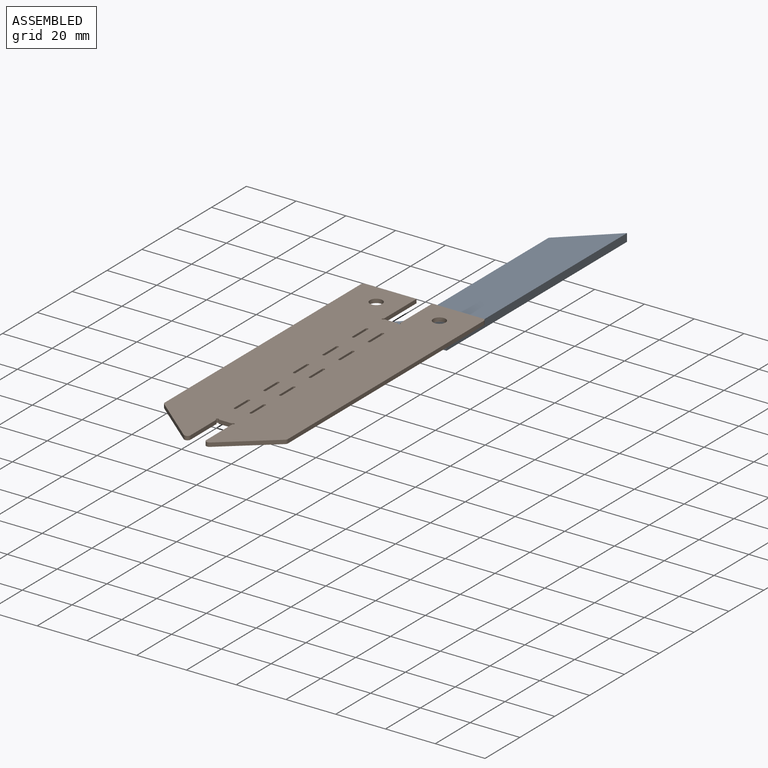
[diagram: assembled view]
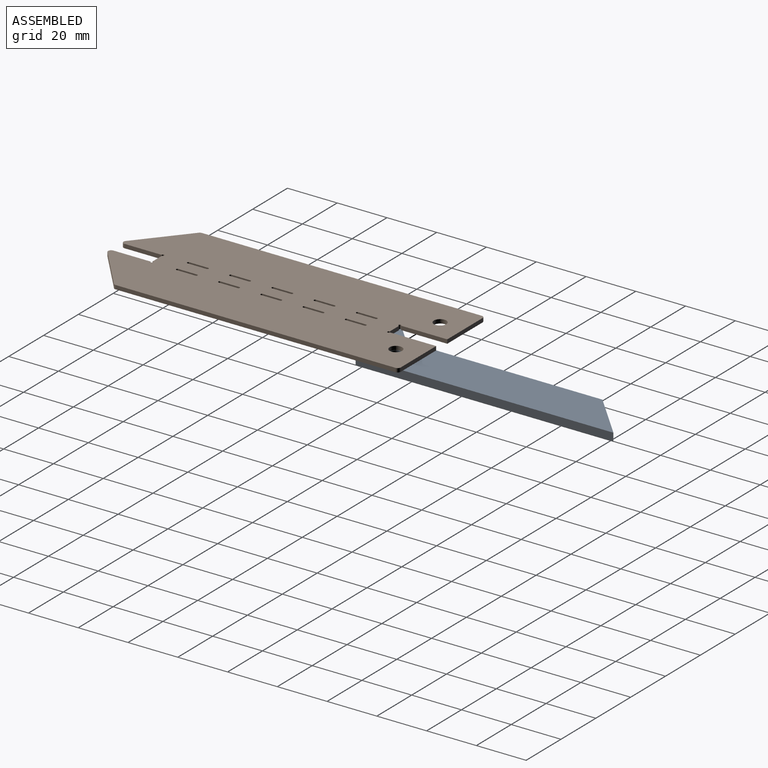
[diagram: assembled view, second angle]
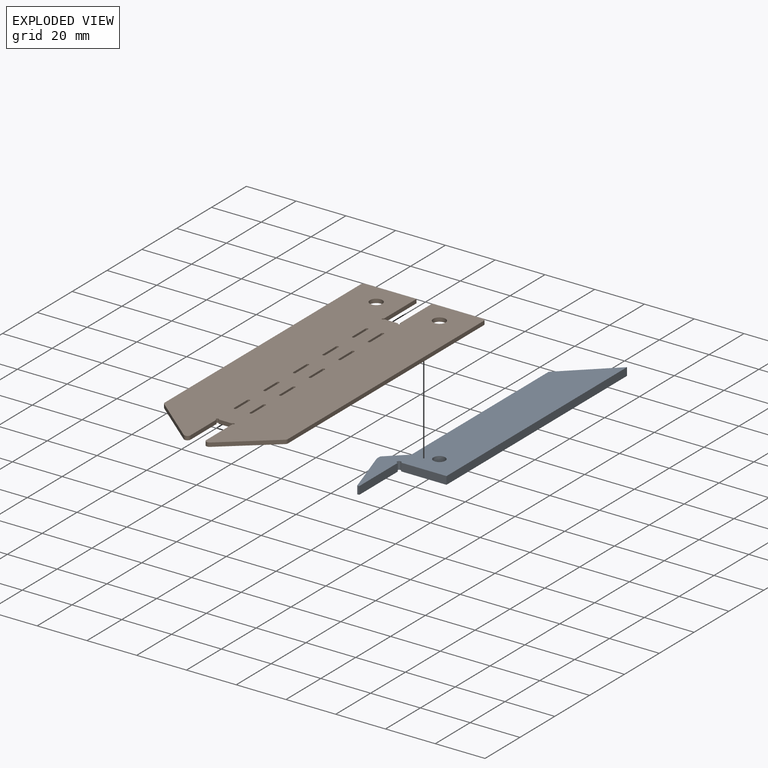
[diagram: exploded view]
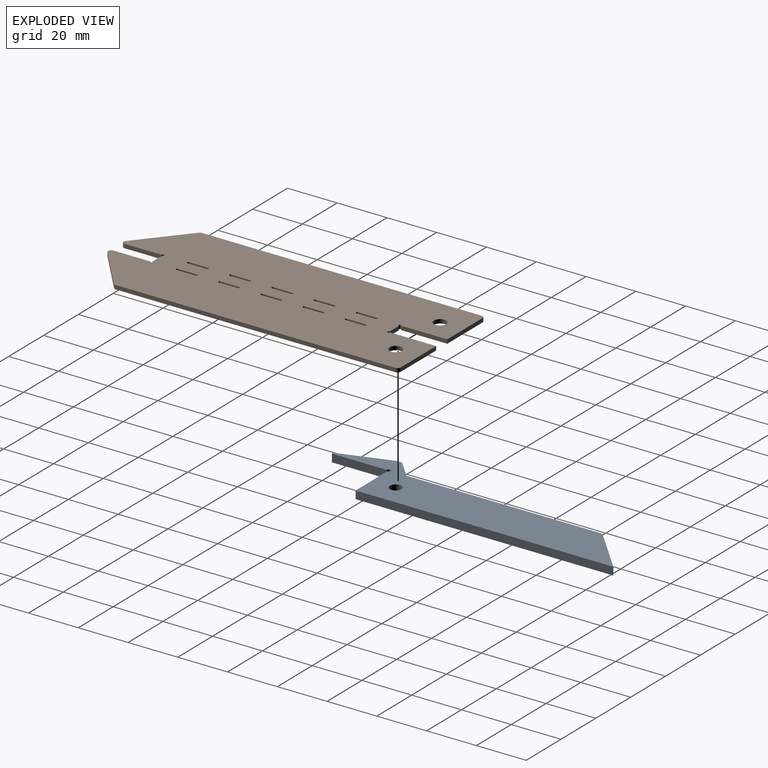
[diagram: exploded view, second angle]
ASSEMBLY  parts=2 mates=2
PART A: 13 faces, bbox 126.5x26.7x3.2 mm
  f0: plane 3.18x0.82mm, normal (-1,0,0), area 2.6mm2, adj f1,f10,f11,f12
  f1: plane 22.1x3.18mm, normal (0,-1,0), area 70.2mm2, adj f0,f2,f11,f12
  f2: cylinder r=0.79mm len=3.18mm, axis (0,0,-1), area 11.9mm2, adj f1,f3,f11,f12
  f3: plane 18.26x3.18mm, normal (-1,0,0), area 58mm2, adj f2,f4,f11,f12
  f4: plane 103.63x3.18mm, normal (0,-1,0), area 329mm2, adj f3,f5,f11,f12
  f5: plane 19.05x17.78mm, normal (0.73,0.68,0), area 82.7mm2, adj f4,f6,f11,f12
  f6: plane 78.74x3.18mm, normal (0,1,0), area 250mm2, adj f5,f7,f11,f12
  f7: plane 7.62x7.11mm, normal (0.73,0.68,0), area 33.1mm2, adj f6,f8,f11,f12
  f8: plane 3.18x1.96mm, normal (0,1,0), area 6.2mm2, adj f7,f10,f11,f12
  f9: cylinder r=2.38mm len=4.76mm, axis (0,0,-1), area 47.5mm2, adj f11,f12
  f10: plane 20.94x6.8mm, normal (-0.31,0.95,0), area 69.9mm2, adj f0,f8,f11,f12
  f11: plane 126.52x26.67mm, normal (0,0,1), area 1915.8mm2, adj f0,f1,f2,f3,f4,f5,f6,f7
  f12: plane 126.52x26.67mm, normal (0,0,-1), area 1915.8mm2, adj f0,f1,f2,f3,f4,f5,f6,f7
PART B: 66 faces, bbox 49.5x131x1.6 mm
  f0: cylinder r=0.51mm len=1.59mm, axis (0,0,-1), area 2.5mm2, adj f1,f48,f60,f61
  f1: plane 7.62x1.59mm, normal (-1,0,0), area 12.1mm2, adj f0,f2,f60,f61
  f2: cylinder r=0.51mm len=1.59mm, axis (0,0,-1), area 2.5mm2, adj f1,f48,f60,f61
  f3: cylinder r=0.51mm len=1.59mm, axis (0,0,-1), area 2.5mm2, adj f4,f49,f60,f61
  f4: plane 7.62x1.59mm, normal (1,0,0), area 12.1mm2, adj f3,f5,f60,f61
  f5: cylinder r=0.51mm len=1.59mm, axis (0,0,-1), area 2.5mm2, adj f4,f49,f60,f61
  f6: cylinder r=0.51mm len=1.59mm, axis (0,0,-1), area 2.5mm2, adj f7,f50,f60,f61
  f7: plane 7.62x1.59mm, normal (-1,0,0), area 12.1mm2, adj f6,f8,f60,f61
  f8: cylinder r=0.51mm len=1.59mm, axis (0,0,-1), area 2.5mm2, adj f7,f50,f60,f61
  f9: cylinder r=0.51mm len=1.59mm, axis (0,0,-1), area 2.5mm2, adj f10,f51,f60,f61
  f10: plane 7.62x1.59mm, normal (1,0,0), area 12.1mm2, adj f9,f11,f60,f61
  f11: cylinder r=0.51mm len=1.59mm, axis (0,0,-1), area 2.5mm2, adj f10,f51,f60,f61
  f12: cylinder r=0.51mm len=1.59mm, axis (0,0,-1), area 2.5mm2, adj f13,f52,f60,f61
  f13: plane 7.62x1.59mm, normal (-1,0,0), area 12.1mm2, adj f12,f14,f60,f61
  f14: cylinder r=0.51mm len=1.59mm, axis (0,0,-1), area 2.5mm2, adj f13,f52,f60,f61
  f15: cylinder r=0.51mm len=1.59mm, axis (0,0,-1), area 2.5mm2, adj f16,f53,f60,f61
  f16: plane 7.62x1.59mm, normal (-1,0,0), area 12.1mm2, adj f15,f17,f60,f61
  f17: cylinder r=0.51mm len=1.59mm, axis (0,0,-1), area 2.5mm2, adj f16,f53,f60,f61
  f18: cylinder r=0.51mm len=1.59mm, axis (0,0,-1), area 2.5mm2, adj f19,f54,f60,f61
  f19: plane 7.62x1.59mm, normal (-1,0,0), area 12.1mm2, adj f18,f20,f60,f61
  f20: cylinder r=0.51mm len=1.59mm, axis (0,0,-1), area 2.5mm2, adj f19,f54,f60,f61
  f21: plane 7.62x1.59mm, normal (1,0,0), area 12.1mm2, adj f22,f55,f60,f61
  f22: cylinder r=0.51mm len=1.59mm, axis (0,0,-1), area 2.5mm2, adj f21,f23,f60,f61
  f23: plane 7.62x1.59mm, normal (-1,0,0), area 12.1mm2, adj f22,f55,f60,f61
  f24: plane 7.62x1.59mm, normal (1,0,0), area 12.1mm2, adj f25,f56,f60,f61
  f25: cylinder r=0.51mm len=1.59mm, axis (0,0,-1), area 2.5mm2, adj f24,f26,f60,f61
  f26: plane 7.62x1.59mm, normal (-1,0,0), area 12.1mm2, adj f25,f56,f60,f61
  f27: plane 5.33x1.59mm, normal (0,-1,0), area 8.5mm2, adj f28,f57,f60,f61
  f28: cylinder r=0.51mm len=1.59mm, axis (0,0,-1), area 3.8mm2, adj f27,f29,f60,f61
  f29: plane 14.88x1.59mm, normal (-1,0,0), area 23.6mm2, adj f28,f30,f60,f61
  f30: cylinder r=1.27mm len=2.09mm, axis (0,0,-1), area 4.6mm2, adj f29,f31,f60,f61
  f31: plane 19.05x15.99mm, normal (0.64,-0.77,0), area 39.5mm2, adj f30,f60,f61,f62
  f32: plane 112.44x1.59mm, normal (1,0,0), area 178.5mm2, adj f60,f61,f62,f63
  f33: plane 20.32x1.59mm, normal (0,1,0), area 32.3mm2, adj f34,f60,f61,f63
  f34: plane 18.54x1.59mm, normal (-1,0,0), area 29.4mm2, adj f33,f35,f60,f61
  f35: cylinder r=0.51mm len=1.59mm, axis (0,0,-1), area 3.8mm2, adj f34,f36,f60,f61
  f36: plane 5.33x1.59mm, normal (0,1,0), area 8.5mm2, adj f35,f37,f60,f61
  f37: cylinder r=0.51mm len=1.59mm, axis (0,0,-1), area 3.8mm2, adj f36,f38,f60,f61
  f38: plane 18.54x1.59mm, normal (1,0,0), area 29.4mm2, adj f37,f39,f60,f61
  f39: plane 20.32x1.59mm, normal (0,1,0), area 32.3mm2, adj f38,f60,f61,f64
  f40: plane 112.44x1.59mm, normal (-1,0,0), area 178.5mm2, adj f60,f61,f64,f65
  f41: plane 19.05x15.99mm, normal (-0.64,-0.77,0), area 39.5mm2, adj f42,f60,f61,f65
  f42: cylinder r=1.27mm len=2.09mm, axis (0,0,-1), area 4.6mm2, adj f41,f43,f60,f61
  f43: plane 14.88x1.59mm, normal (1,0,0), area 23.6mm2, adj f42,f57,f60,f61
  f44: cylinder r=0.51mm len=1.59mm, axis (0,0,-1), area 2.5mm2, adj f45,f58,f60,f61
  f45: plane 7.62x1.59mm, normal (-1,0,0), area 12.1mm2, adj f44,f46,f60,f61
  f46: cylinder r=0.51mm len=1.59mm, axis (0,0,-1), area 2.5mm2, adj f45,f58,f60,f61
  f47: cylinder r=2.51mm len=5.02mm, axis (0,0,-1), area 25mm2, adj f60,f61
  f48: plane 7.62x1.59mm, normal (1,0,0), area 12.1mm2, adj f0,f2,f60,f61
  f49: plane 7.62x1.59mm, normal (-1,0,0), area 12.1mm2, adj f3,f5,f60,f61
  f50: plane 7.62x1.59mm, normal (1,0,0), area 12.1mm2, adj f6,f8,f60,f61
  f51: plane 7.62x1.59mm, normal (-1,0,0), area 12.1mm2, adj f9,f11,f60,f61
  f52: plane 7.62x1.59mm, normal (1,0,0), area 12.1mm2, adj f12,f14,f60,f61
  f53: plane 7.62x1.59mm, normal (1,0,0), area 12.1mm2, adj f15,f17,f60,f61
  f54: plane 7.62x1.59mm, normal (1,0,0), area 12.1mm2, adj f18,f20,f60,f61
  f55: cylinder r=0.51mm len=1.59mm, axis (0,0,-1), area 2.5mm2, adj f21,f23,f60,f61
  f56: cylinder r=0.51mm len=1.59mm, axis (0,0,-1), area 2.5mm2, adj f24,f26,f60,f61
  f57: cylinder r=0.51mm len=1.59mm, axis (0,0,-1), area 3.8mm2, adj f27,f43,f60,f61
  f58: plane 7.62x1.59mm, normal (1,0,0), area 12.1mm2, adj f44,f46,f60,f61
  f59: cylinder r=2.51mm len=5.02mm, axis (0,0,-1), area 25mm2, adj f60,f61
  f60: plane 130.96x49.53mm, normal (0,0,1), area 5799.9mm2, adj f0,f1,f2,f3,f4,f5,f6,f7
  f61: plane 130.96x49.53mm, normal (0,0,-1), area 5799.9mm2, adj f0,f1,f2,f3,f4,f5,f6,f7
  f62: cylinder r=1.27mm len=1.59mm, axis (0,0,-1), area 1.8mm2, adj f31,f32,f60,f61
  f63: cylinder r=1.27mm len=1.59mm, axis (0,0,-1), area 3.2mm2, adj f32,f33,f60,f61
  f64: cylinder r=1.27mm len=1.59mm, axis (0,0,-1), area 3.2mm2, adj f39,f40,f60,f61
  f65: cylinder r=1.27mm len=1.59mm, axis (0,0,-1), area 1.8mm2, adj f40,f41,f60,f61
PLACE A rot(axis=(0,0,1),90deg) t=(-61.58,166.86,11.66)mm
PLACE B rot(axis=(0,0,1),0deg) t=(-50.76,46.22,14.84)mm fixed
MATE planar B.f18 <-> A.f11  axis (0,0,-1) through (-47.59,98.05,14.84)mm
MATE slider B.f59 <-> A.f9  axis (0,0,-1) through (-38.06,150.99,14.84)mm
